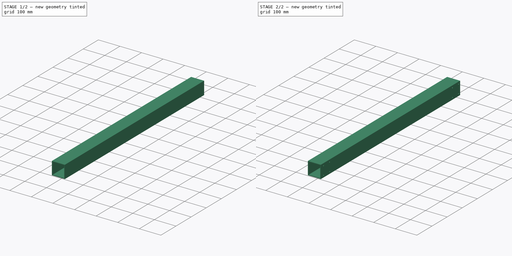
[diagram: build sequence overview — one tinted view per stage of 2, left to right]
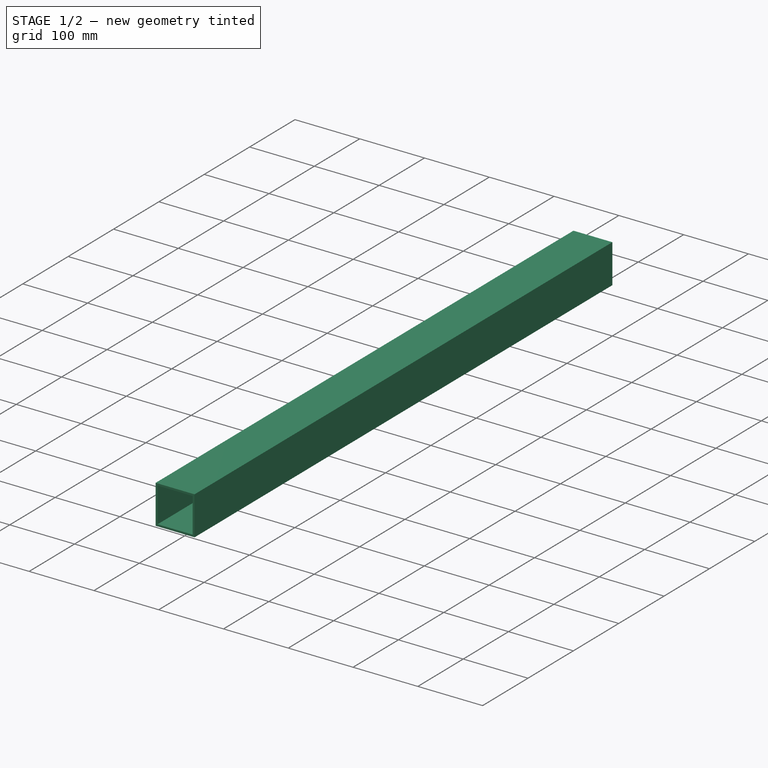
[diagram: stage 1 of 2 — iso view after this stage's code; geometry added in this stage tinted green]
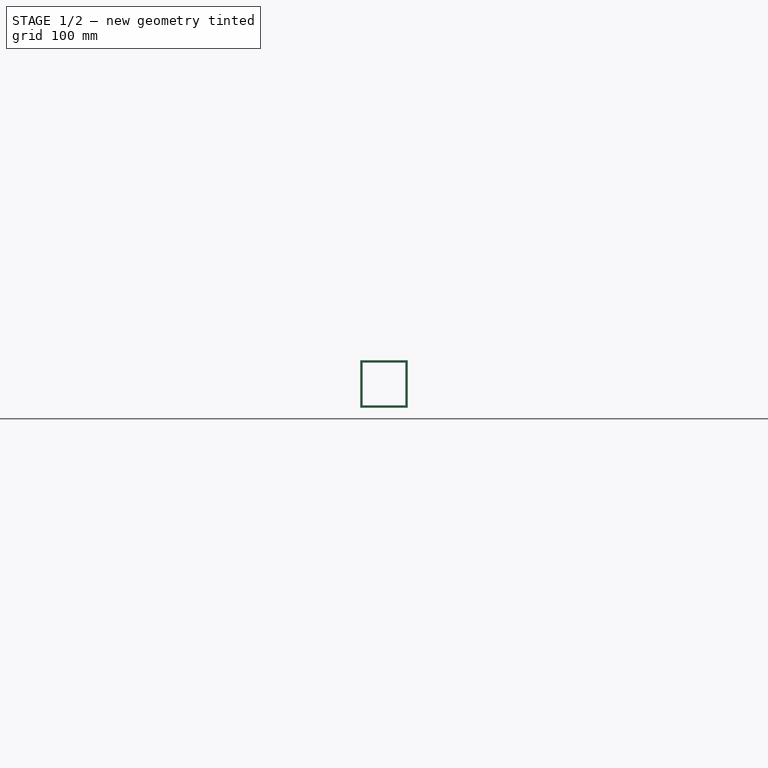
[diagram: stage 1 of 2 — front view after this stage's code; geometry added in this stage tinted green]
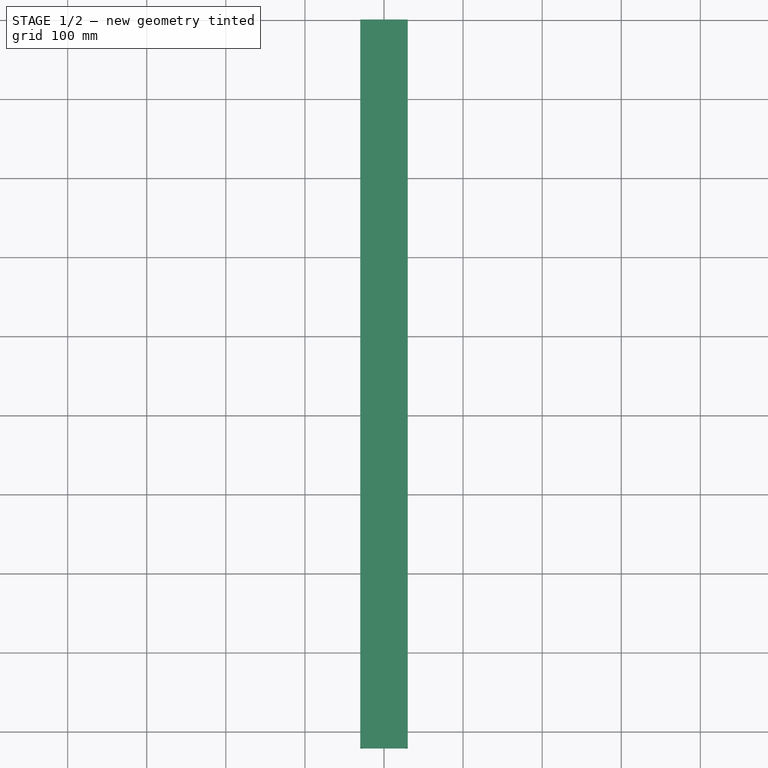
[diagram: stage 1 of 2 — top view after this stage's code; geometry added in this stage tinted green]
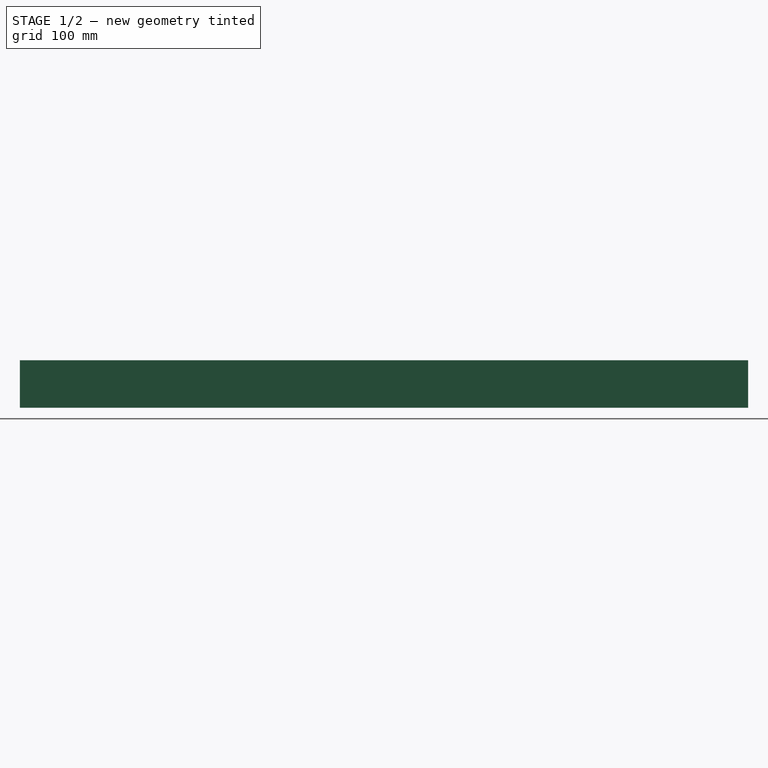
[diagram: stage 1 of 2 — right view after this stage's code; geometry added in this stage tinted green]
FCSTD DOCUMENT  (FreeCAD 0.19R)
Label: portal_tube
License: All rights reserved
LicenseURL: http://en.wikipedia.org/wiki/All_rights_reserved
objects: PartDesign::CoordinateSystem×7, Sketcher::SketchObject×2, PartDesign::Pad×1, PartDesign::Pocket×1, PartDesign::Body×1
note: 14 computed .brp shape members not serialized (recipe doc carries the construction recipe); baked Part::Feature solids carry a one-line shape summary decoded from their .brp

FEATURE [Sketcher::SketchObject] Sketch
  FullyConstrained = true
  MapMode = 5
  Placement = pos=(0,0,0) rot=(1,0,0;1.5708rad)
  Support = -> [XZ_Plane]
  sketch-geometry (8):
    g0: LineSegment StartX=-27 StartY=27 StartZ=0 EndX=27 EndY=27 EndZ=0
    g1: LineSegment StartX=27 StartY=27 StartZ=0 EndX=27 EndY=-27 EndZ=0
    g2: LineSegment StartX=27 StartY=-27 StartZ=0 EndX=-27 EndY=-27 EndZ=0
    g3: LineSegment StartX=-27 StartY=-27 StartZ=0 EndX=-27 EndY=27 EndZ=0
    g4: LineSegment StartX=-30 StartY=30 StartZ=0 EndX=30 EndY=30 EndZ=0
    g5: LineSegment StartX=30 StartY=30 StartZ=0 EndX=30 EndY=-30 EndZ=0
    g6: LineSegment StartX=30 StartY=-30 StartZ=0 EndX=-30 EndY=-30 EndZ=0
    g7: LineSegment StartX=-30 StartY=-30 StartZ=0 EndX=-30 EndY=30 EndZ=0
  constraints (22):
    c: Coincident(g0,g1)
    c: Coincident(g1,g2)
    c: Coincident(g2,g3)
    c: Coincident(g3,g0)
    c: Horizontal(g0)
    c: Horizontal(g2)
    c: Vertical(g1)
    c: Vertical(g3)
    c: Coincident(g4,g5)
    c: Coincident(g5,g6)
    c: Coincident(g6,g7)
    c: Coincident(g7,g4)
    c: Horizontal(g6)
    c: Vertical(g5)
    c: DistanceY(g7,g7) = 60
    c: DistanceX(g4,g4) = 60
    c: Symmetric(g4,g4,g-2)
    c: Symmetric(g6,g4,g-1)
    c: DistanceX(g0,g4) = 3
    c: DistanceY(g0,g4) = 3
    c: DistanceX(g6,g2) = 3
    c: DistanceY(g6,g2) = 3
FEATURE [PartDesign::Pad] Pad
  Direction = (1,1,1)
  Length = 921
  Length2 = 100
  Placement = pos=(0,0,0) rot=(1,0,0;1.5708rad)
  Profile = -> Sketch
  Type = 0
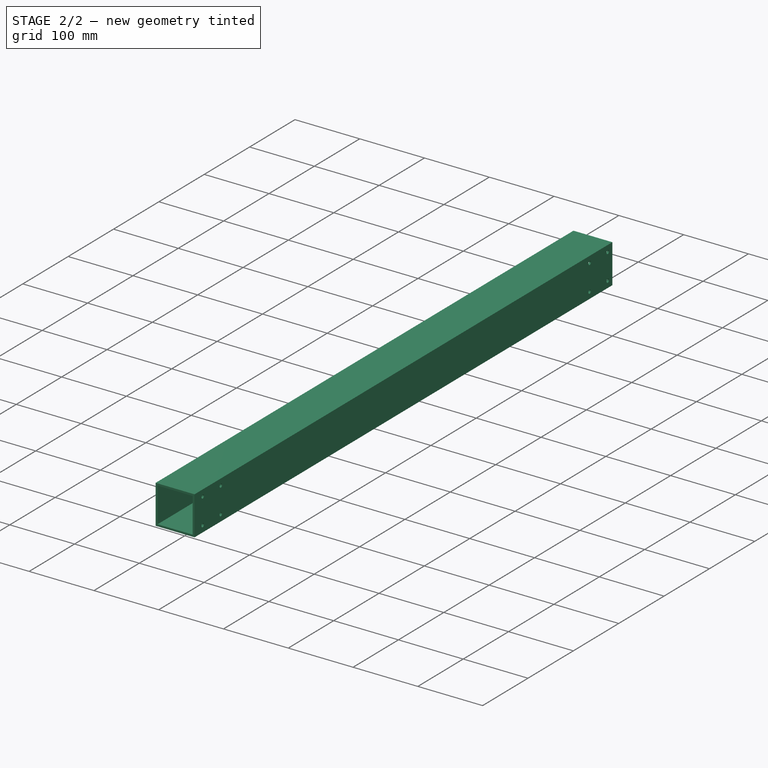
[diagram: stage 2 of 2 — iso view after this stage's code; geometry added in this stage tinted green]
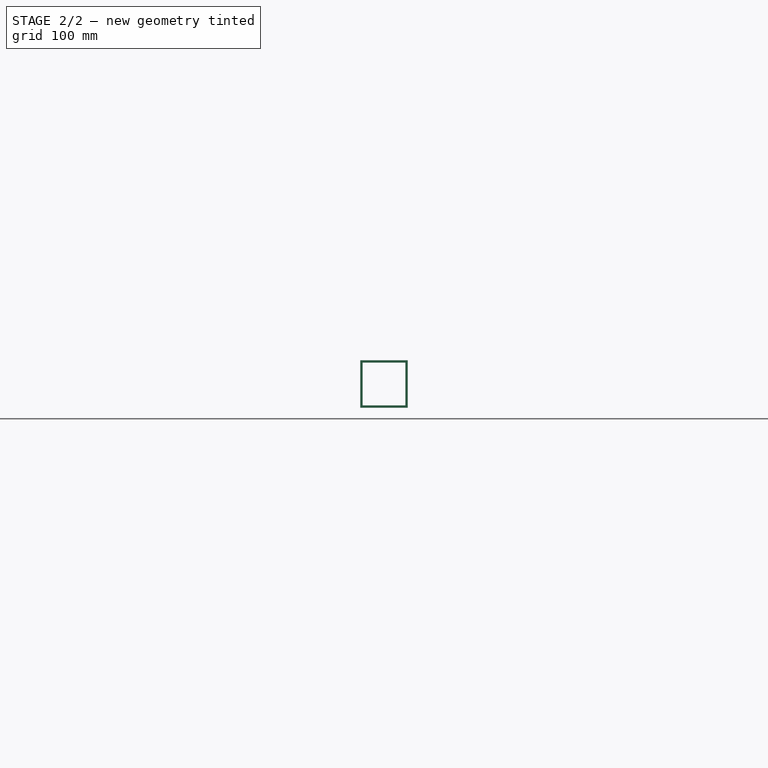
[diagram: stage 2 of 2 — front view after this stage's code; geometry added in this stage tinted green]
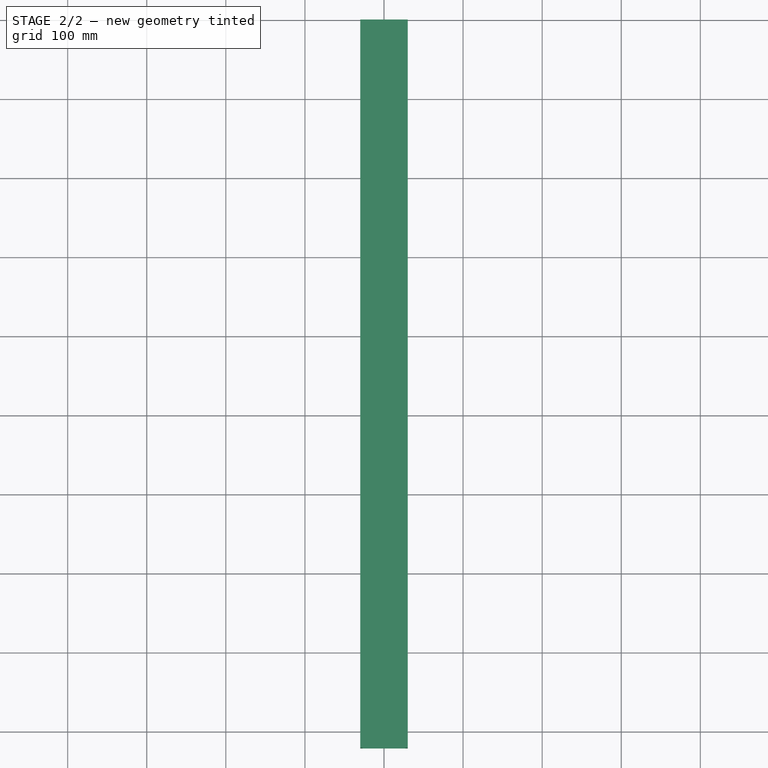
[diagram: stage 2 of 2 — top view after this stage's code; geometry added in this stage tinted green]
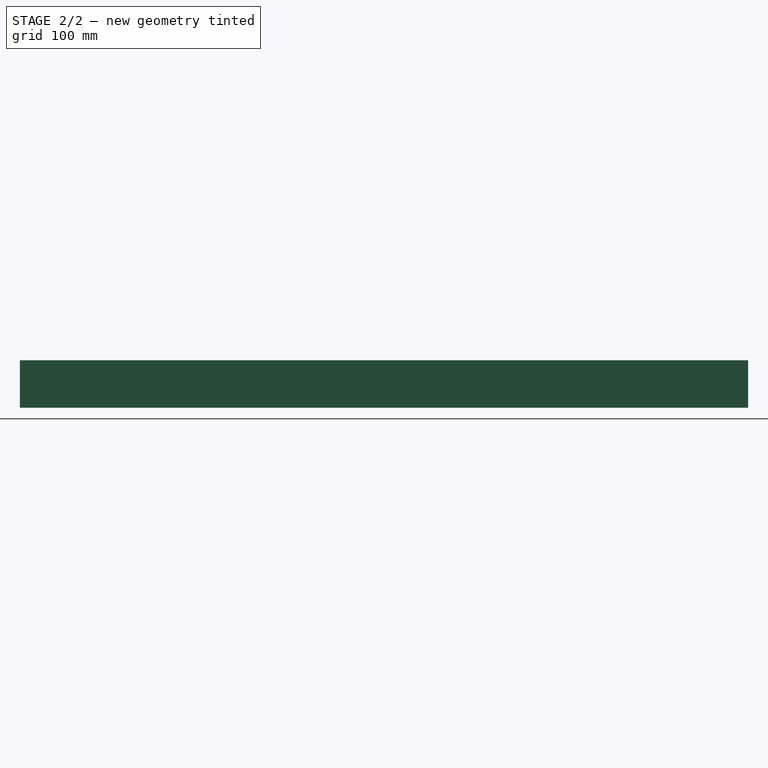
[diagram: stage 2 of 2 — right view after this stage's code; geometry added in this stage tinted green]
FEATURE [Sketcher::SketchObject] Sketch002
  ExternalGeometry = -> [Pad]
  FullyConstrained = true
  MapMode = 5
  Placement = pos=(30,0,0) rot=(0.707107,0,0.707107;3.14159rad)
  Support = -> [Pad]
  sketch-geometry (14):
    g0: Circle CenterX=-20 CenterY=50 CenterZ=0 NormalX=0 NormalY=0 NormalZ=1 AngleXU=0 Radius=2.75
    g1: Circle CenterX=20 CenterY=50 CenterZ=0 NormalX=0 NormalY=0 NormalZ=1 AngleXU=0 Radius=2.75
    g2: LineSegment StartX=-20 StartY=50 StartZ=0 EndX=20 EndY=50 EndZ=0
    g3: Circle CenterX=-20 CenterY=10 CenterZ=0 NormalX=0 NormalY=0 NormalZ=1 AngleXU=0 Radius=2.75
    g4: LineSegment StartX=-20 StartY=50 StartZ=0 EndX=-20 EndY=10 EndZ=0
    g5: Circle CenterX=20 CenterY=10 CenterZ=0 NormalX=0 NormalY=0 NormalZ=1 AngleXU=0 Radius=2.75
    g6: LineSegment StartX=-20 StartY=10 StartZ=0 EndX=20 EndY=10 EndZ=0
    g7: Circle CenterX=-20 CenterY=903 CenterZ=0 NormalX=0 NormalY=0 NormalZ=1 AngleXU=0 Radius=2.75
    g8: Circle CenterX=20 CenterY=903 CenterZ=0 NormalX=0 NormalY=0 NormalZ=1 AngleXU=0 Radius=2.75
    g9: LineSegment StartX=-20 StartY=903 StartZ=0 EndX=20 EndY=903 EndZ=0
    g10: Circle CenterX=-20 CenterY=863 CenterZ=0 NormalX=0 NormalY=0 NormalZ=1 AngleXU=0 Radius=2.75
    g11: LineSegment StartX=-20 StartY=903 StartZ=0 EndX=-20 EndY=863 EndZ=0
    g12: Circle CenterX=20 CenterY=863 CenterZ=0 NormalX=0 NormalY=0 NormalZ=1 AngleXU=0 Radius=2.75
    g13: LineSegment StartX=-20 StartY=863 StartZ=0 EndX=20 EndY=863 EndZ=0
  constraints (36):
    c: Coincident(g0,g2)
    c: Coincident(g1,g2)
    c: Distance(g2) = 40
    c: Angle(g2) = 0
    c: Coincident(g0,g4)
    c: Coincident(g3,g4)
    c: Distance(g4) = 40
    c: Perpendicular(g4,g2)
    c: Coincident(g3,g6)
    c: Coincident(g5,g6)
    c: Equal(g2,g6)
    c: Parallel(g6,g2)
    c: DistanceY(g-1,g3) = 10
    c: DistanceX(g3,g-1) = 20
    c: Equal(g5,g3)
    c: Equal(g3,g0)
    c: Equal(g0,g1)
    c: Diameter(g1) = 5.5
    c: Coincident(g7,g9)
    c: Coincident(g8,g9)
    c: Distance(g9) = 40
    c: Angle(g9) = 0
    c: Coincident(g7,g11)
    c: Coincident(g10,g11)
    c: Equal(g11,g9)
    c: Perpendicular(g11,g9)
    c: Coincident(g10,g13)
    c: Coincident(g12,g13)
    c: Equal(g9,g13)
    c: Parallel(g13,g9)
    c: Equal(g12,g10)
    c: Equal(g10,g7)
    c: Equal(g7,g8)
    c: Diameter(g8) = 5.5
    c: DistanceY(g8,g-3) = 18
    c: DistanceX(g8,g-3) = 10
FEATURE [PartDesign::Pocket] Pocket
  BaseFeature = -> Pad
  Length = 3
  Length2 = 100
  Placement = pos=(0,0,0) rot=(1,0,0;1.5708rad)
  Profile = -> Sketch002
  Type = 0
FEATURE [PartDesign::CoordinateSystem] LCS_top_rail
  AttacherType = Attacher::AttachEngine3D
  AttachmentOffset = pos=(0,160,0) rot=(0,0,1;0rad)
  MapMode = 5
  Placement = pos=(0,-160,30) rot=(0,0,1;3.14159rad)
  Support = -> [Pocket]
FEATURE [PartDesign::CoordinateSystem] LCS_bottom_RAIL
  AttacherType = Attacher::AttachEngine3D
  AttachmentOffset = pos=(0,160,0) rot=(0,0,1;0rad)
  MapMode = 5
  Placement = pos=(0,-160,-30) rot=(1,0,0;3.14159rad)
  Support = -> [Pocket]
FEATURE [PartDesign::CoordinateSystem] LCS_BF
  AttacherType = Attacher::AttachEngine3D
  AttachmentOffset = pos=(0,130,0) rot=(0,0,1;0rad)
  MapMode = 5
  Placement = pos=(0,-130,-30) rot=(1,0,0;3.14159rad)
  Support = -> [Pocket]
FEATURE [PartDesign::CoordinateSystem] LCS_1
  AttacherType = Attacher::AttachEngine3D
  MapMode = 11
  Placement = pos=(30,-903,20) rot=(0.57735,-0.57735,0.57735;4.18879rad)
  Support = -> [Pocket]
FEATURE [PartDesign::CoordinateSystem] LCS_2
  AttacherType = Attacher::AttachEngine3D
  MapMode = 11
  Placement = pos=(30,-863,20) rot=(0.57735,-0.57735,0.57735;4.18879rad)
  Support = -> [Pocket]
FEATURE [PartDesign::CoordinateSystem] LCS_3
  AttacherType = Attacher::AttachEngine3D
  MapMode = 11
  Placement = pos=(30,-50,20) rot=(0.57735,-0.57735,0.57735;4.18879rad)
  Support = -> [Pocket]
FEATURE [PartDesign::CoordinateSystem] LCS_4
  AttacherType = Attacher::AttachEngine3D
  MapMode = 11
  Placement = pos=(30,-10,20) rot=(0.57735,-0.57735,0.57735;4.18879rad)
  Support = -> [Pocket]
FEATURE [PartDesign::Body] Body
  Group = -> [Sketch,Pad,LCS_top_rail,LCS_bottom_RAIL,LCS_BF,Sketch002,Pocket,LCS_1,LCS_2,LCS_3,LCS_4]
  Origin = -> Origin
  Tip = -> Pocket
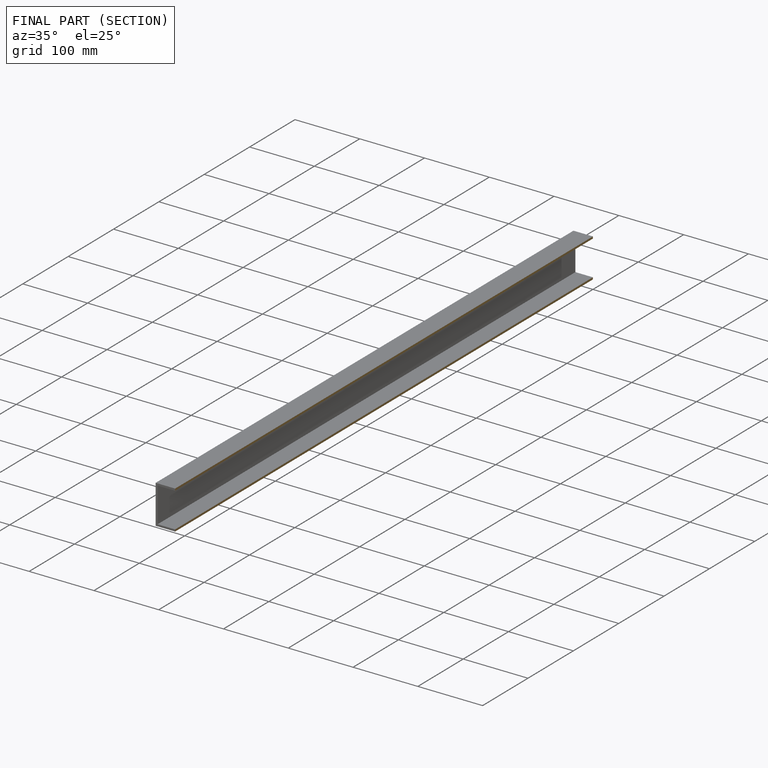
[diagram: finished part — half-section view (interior)]
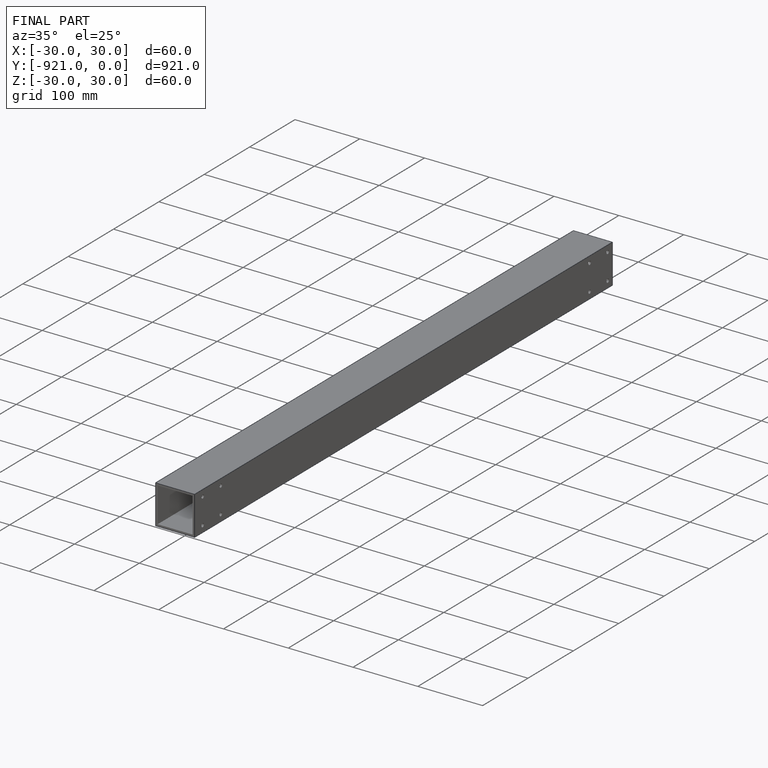
[diagram: finished part — iso view with bounding-box wireframe]
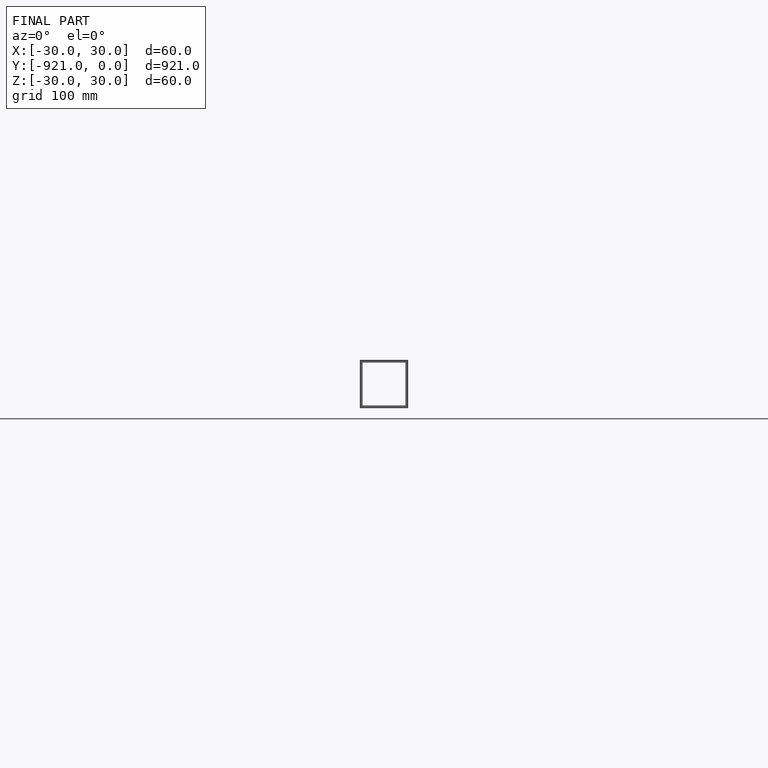
[diagram: finished part — front view with bounding-box wireframe]
